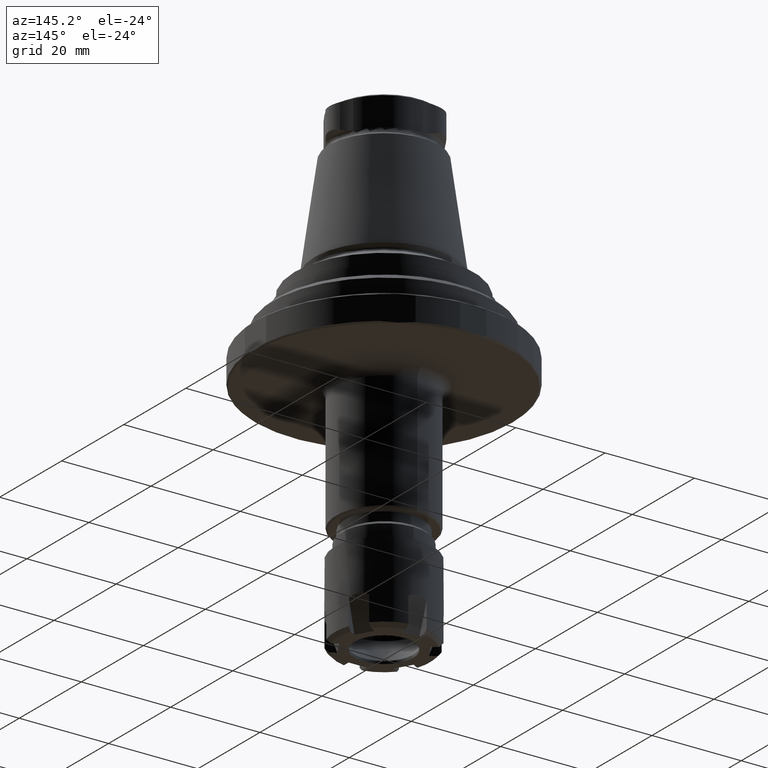
[diagram: clean part render]
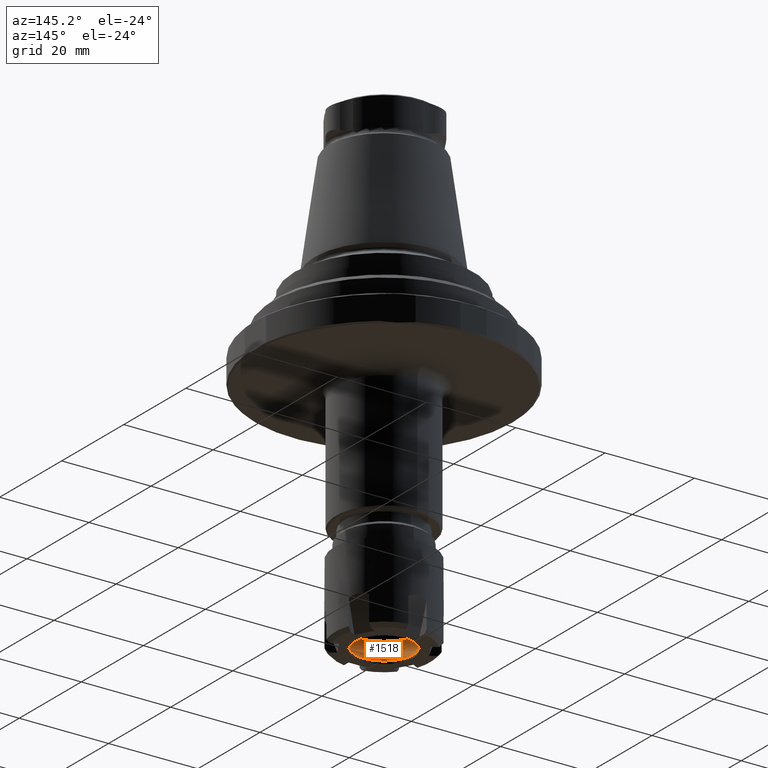
[diagram: same view with one face highlighted and labeled with its STEP entity id]
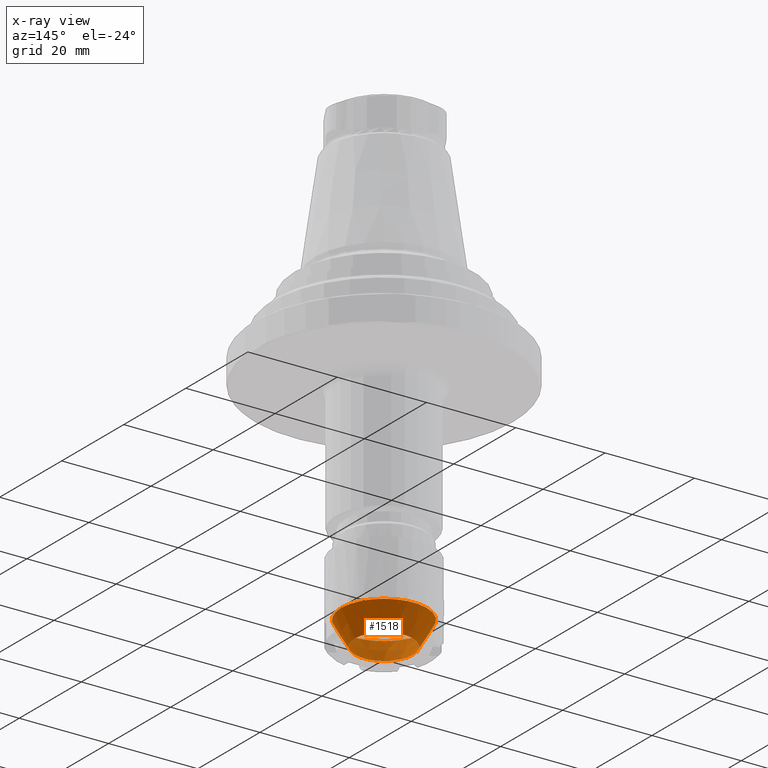
[diagram: x-ray of the same camera — body ghosted, the highlighted face saturated]
A machine part, auxiliary view. The second image highlights one B-rep face of the part: STEP entity #1518.
The next image is the same camera in x-ray: the body ghosted, the highlighted face saturated — about 0% of this face is hidden behind the body in this view.
In plain terms, the highlighted conical surface has half-angle 30 deg.
Its self-contained STEP definition (entity closure, byte-faithful):
#279=CONICAL_SURFACE('',#1710,9.59999999999998,0.5235987755983);
#684=ORIENTED_EDGE('',*,*,#891,.T.);
#685=ORIENTED_EDGE('',*,*,#890,.F.);
#890=EDGE_CURVE('',#1036,#1036,#1112,.T.);
#891=EDGE_CURVE('',#1037,#1037,#1113,.T.);
#1036=VERTEX_POINT('',#2751);
#1037=VERTEX_POINT('',#2754);
#1112=CIRCLE('',#1709,9.59999999999998);
#1113=CIRCLE('',#1711,6.49911504424777);
#1246=EDGE_LOOP('',(#684));
#1247=EDGE_LOOP('',(#685));
#1382=FACE_BOUND('',#1246,.T.);
#1383=FACE_BOUND('',#1247,.T.);
#1518=ADVANCED_FACE('',(#1382,#1383),#279,.F.);
#1709=AXIS2_PLACEMENT_3D('',#2750,#2137,#2138);
#1710=AXIS2_PLACEMENT_3D('',#2752,#2139,#2140);
#1711=AXIS2_PLACEMENT_3D('',#2753,#2141,#2142);
#2137=DIRECTION('',(0.,0.,-1.));
#2138=DIRECTION('',(-1.,0.,0.));
#2139=DIRECTION('',(0.,0.,1.));
#2140=DIRECTION('',(1.,0.,0.));
#2141=DIRECTION('',(0.,0.,-1.));
#2142=DIRECTION('',(-1.,0.,0.));
#2750=CARTESIAN_POINT('',(0.,0.,-54.0096221483612));
#2751=CARTESIAN_POINT('',(-9.59999999999998,0.,-54.0096221483612));
#2752=CARTESIAN_POINT('',(0.,0.,-54.0096221483612));
#2753=CARTESIAN_POINT('',(0.,0.,-59.38051244015));
#2754=CARTESIAN_POINT('',(-6.49911504424777,0.,-59.38051244015));